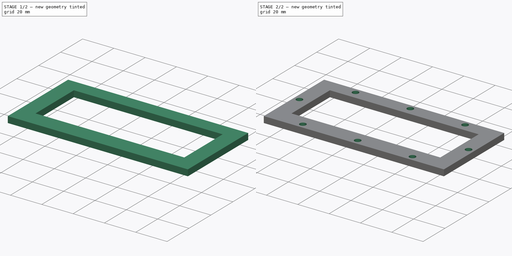
[diagram: build sequence overview — one tinted view per stage of 2, left to right]
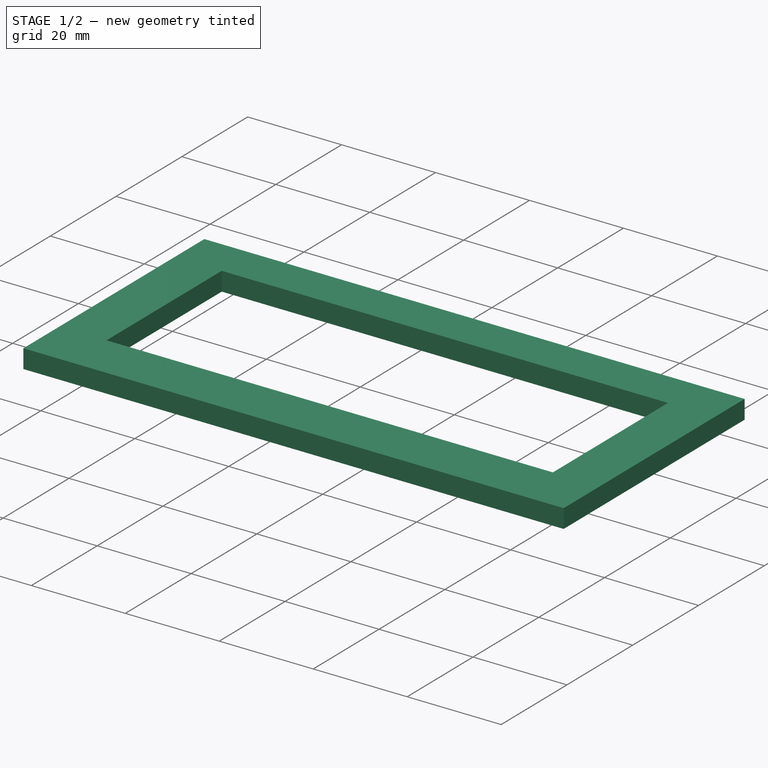
[diagram: stage 1 of 2 — iso view after this stage's code; geometry added in this stage tinted green]
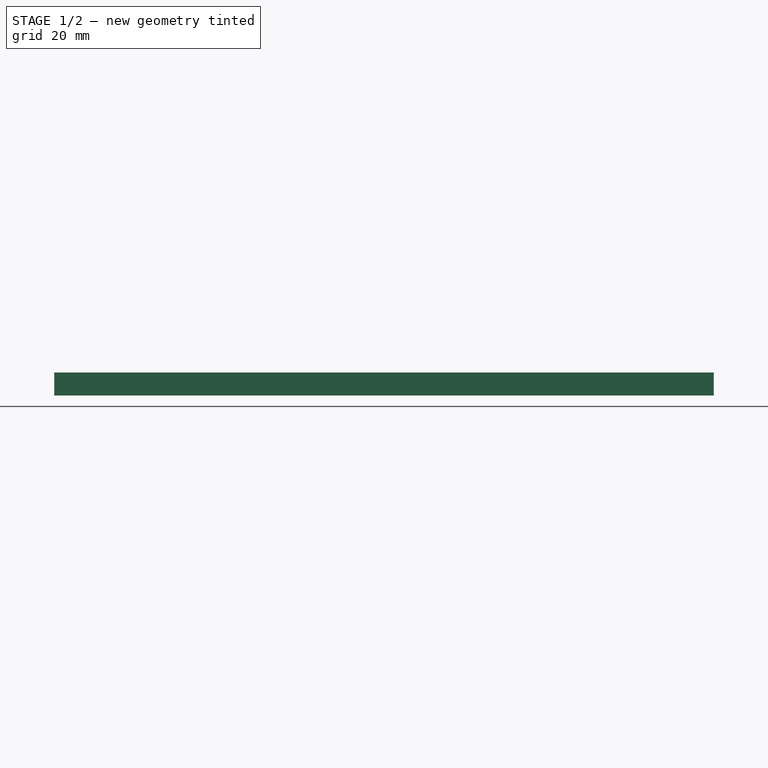
[diagram: stage 1 of 2 — front view after this stage's code; geometry added in this stage tinted green]
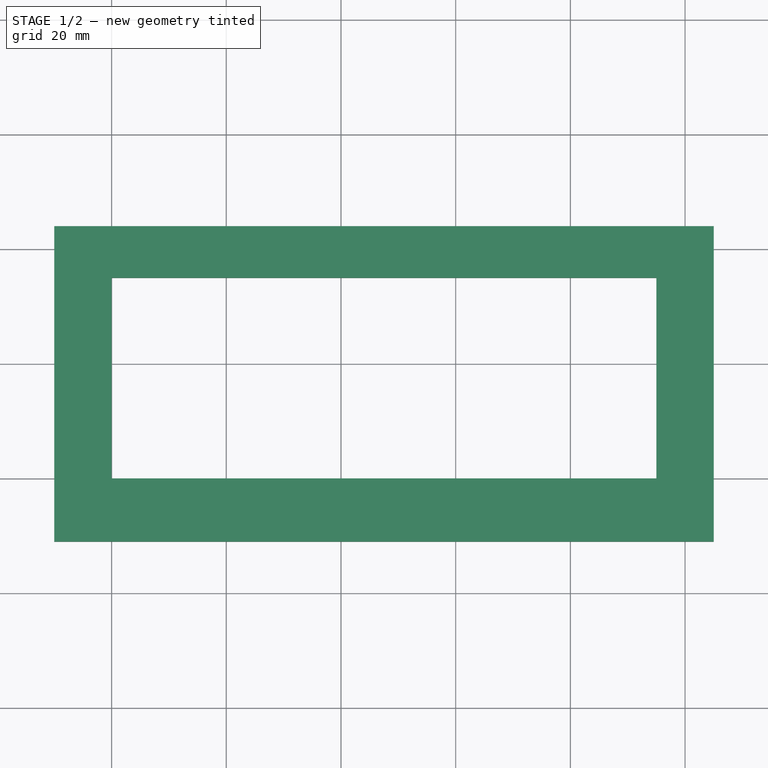
[diagram: stage 1 of 2 — top view after this stage's code; geometry added in this stage tinted green]
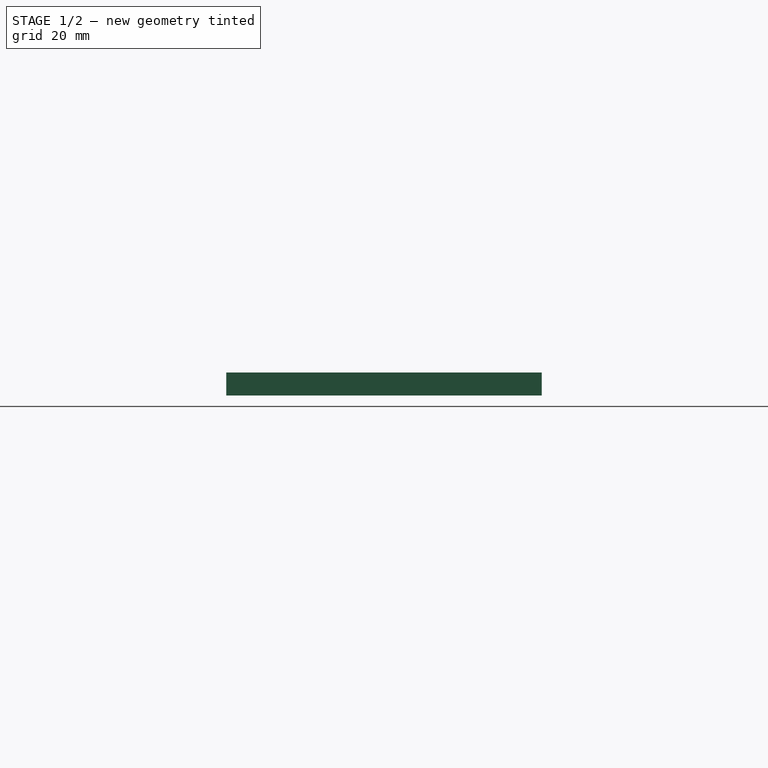
[diagram: stage 1 of 2 — right view after this stage's code; geometry added in this stage tinted green]
FCSTD DOCUMENT  (FreeCAD 0.16R6655 (Git))
Label: taz_Y_Z_Z_external_harness_proto_board_plate
License: CreativeCommons Attribution-ShareAlike
LicenseURL: http://creativecommons.org/licenses/by-sa/4.0/
objects: Sketcher::SketchObject×2, PartDesign::Pad×1, PartDesign::Pocket×1
note: 6 computed .brp shape members not serialized (recipe doc carries the construction recipe); baked Part::Feature solids carry a one-line shape summary decoded from their .brp

FEATURE [Sketcher::SketchObject] Sketch
  sketch-geometry (12):
    g0: LineSegment StartX=0 StartY=0 StartZ=0 EndX=95 EndY=0 EndZ=0
    g1: LineSegment StartX=95 StartY=0 StartZ=0 EndX=95 EndY=35 EndZ=0
    g2: LineSegment StartX=95 StartY=35 StartZ=0 EndX=0 EndY=35 EndZ=0
    g3: LineSegment StartX=0 StartY=35 StartZ=0 EndX=0 EndY=0 EndZ=0
    g4: LineSegment StartX=-10 StartY=-11 StartZ=0 EndX=105 EndY=-11 EndZ=0
    g5: LineSegment StartX=105 StartY=-11 StartZ=0 EndX=105 EndY=44 EndZ=0
    g6: LineSegment StartX=105 StartY=44 StartZ=0 EndX=-10 EndY=44 EndZ=0
    g7: LineSegment StartX=-10 StartY=44 StartZ=0 EndX=-10 EndY=-11 EndZ=0
    g8: LineSegment [constr] StartX=-2.38928 StartY=37.8926 StartZ=0 EndX=98.6107 EndY=37.8926 EndZ=0
    g9: LineSegment [constr] StartX=98.6107 StartY=37.8926 StartZ=0 EndX=98.6107 EndY=-3.10736 EndZ=0
    g10: LineSegment [constr] StartX=98.6107 StartY=-3.10736 StartZ=0 EndX=-2.38928 EndY=-3.10736 EndZ=0
    g11: LineSegment [constr] StartX=-2.38928 StartY=-3.10736 StartZ=0 EndX=-2.38928 EndY=37.8926 EndZ=0
  constraints (33):
    c: Coincident(g0,g1)
    c: Coincident(g1,g2)
    c: Coincident(g2,g3)
    c: Coincident(g3,g0)
    c: Horizontal(g0)
    c: Horizontal(g2)
    c: Vertical(g1)
    c: Vertical(g3)
    c: Coincident(g0,g-1)
    c: DistanceY(g3) = -35
    c: DistanceX(g2) = -95
    c: Coincident(g4,g5)
    c: Coincident(g5,g6)
    c: Coincident(g6,g7)
    c: Coincident(g7,g4)
    c: Horizontal(g4)
    c: Horizontal(g6)
    c: Vertical(g5)
    c: Vertical(g7)
    c: DistanceY(g7) = -55
    c: DistanceX(g4) = 115
    c: DistanceX(g2,g6) = -10
    c: DistanceY(g-1,g4) = -11
    c: Coincident(g8,g9)
    c: Coincident(g9,g10)
    c: Coincident(g10,g11)
    c: Coincident(g11,g8)
    c: Horizontal(g8)
    c: Horizontal(g10)
    c: Vertical(g9)
    c: Vertical(g11)
    c: DistanceY(g11,g11) = 41
    c: DistanceX(g10,g10) = 101
FEATURE [PartDesign::Pad] Pad
  Length = 4
  Length2 = 100
  Sketch = -> Sketch
  Type = 0
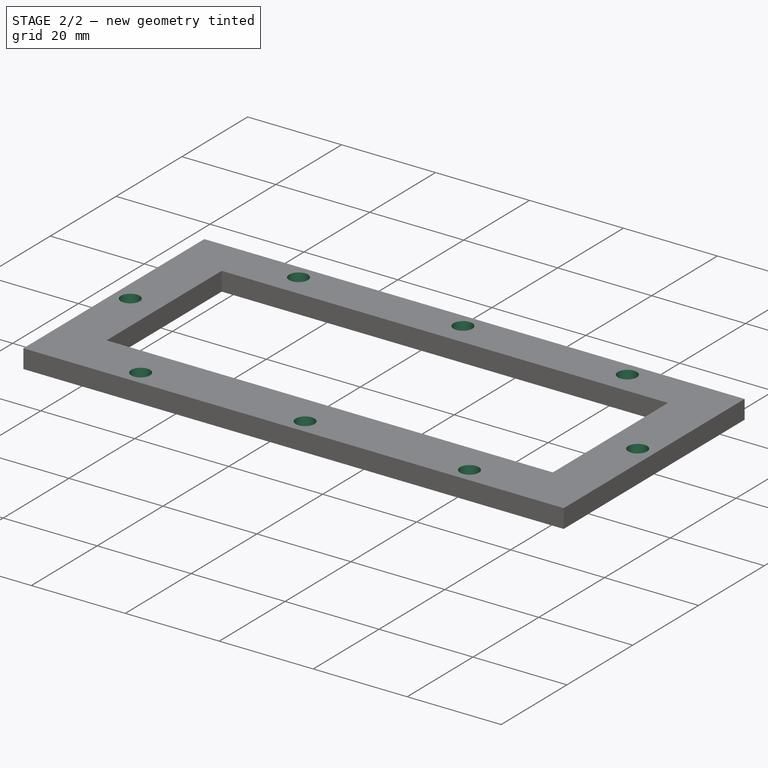
[diagram: stage 2 of 2 — iso view after this stage's code; geometry added in this stage tinted green]
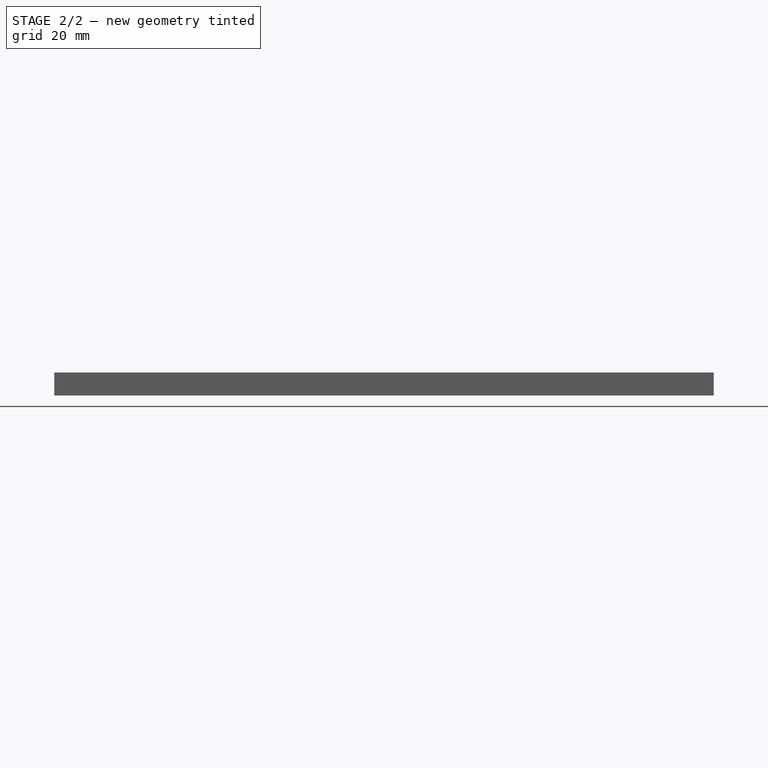
[diagram: stage 2 of 2 — front view after this stage's code; geometry added in this stage tinted green]
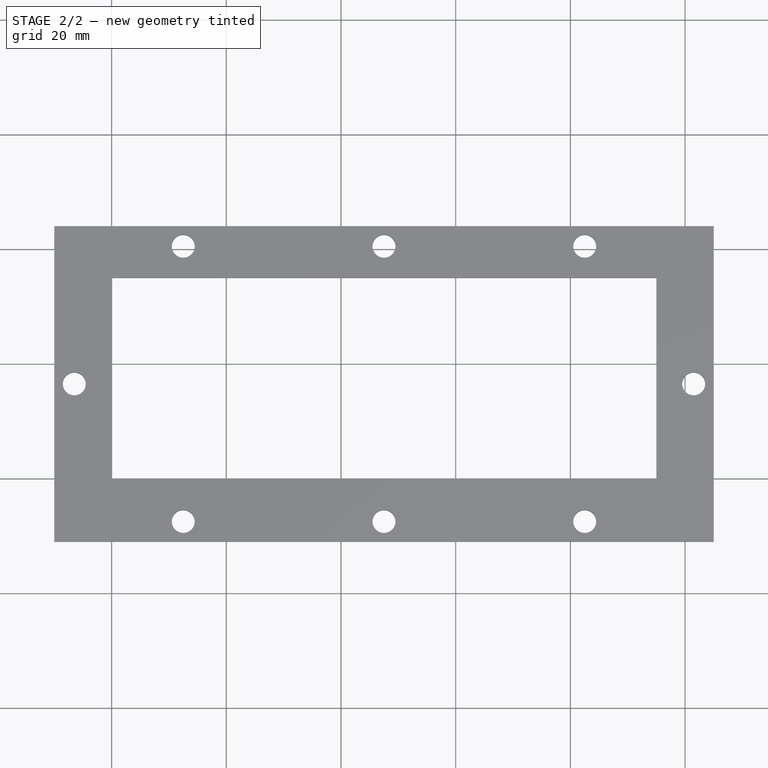
[diagram: stage 2 of 2 — top view after this stage's code; geometry added in this stage tinted green]
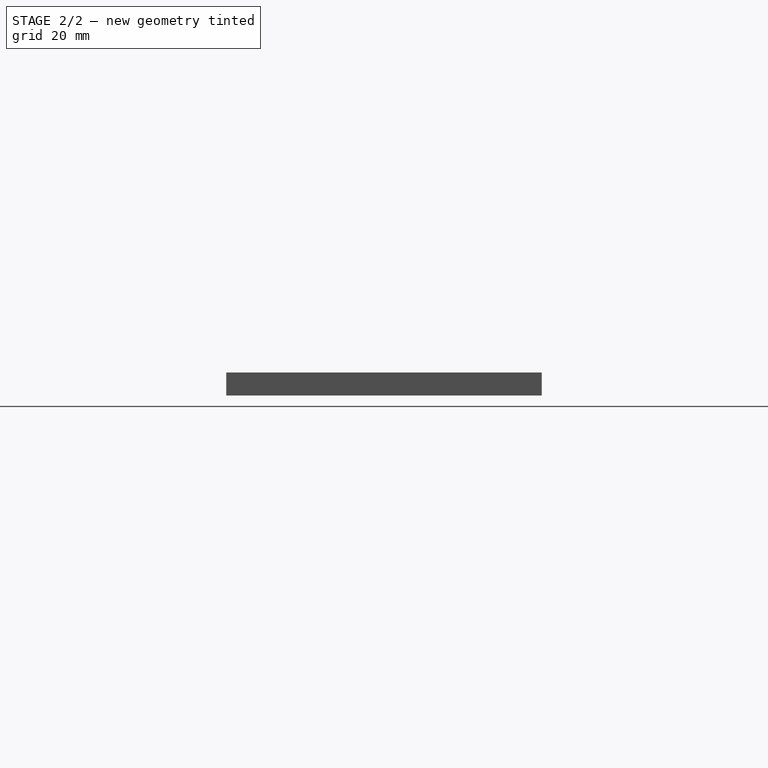
[diagram: stage 2 of 2 — right view after this stage's code; geometry added in this stage tinted green]
FEATURE [Sketcher::SketchObject] Sketch001
  ExternalGeometry = -> [Pad]
  Placement = pos=(0,0,4) rot=(0,0,1;0rad)
  Support = -> Pad [Face10]
  sketch-geometry (12):
    g0: LineSegment [constr] StartX=-6.5 StartY=40.5 StartZ=0 EndX=101.5 EndY=40.5 EndZ=0
    g1: LineSegment [constr] StartX=101.5 StartY=40.5 StartZ=0 EndX=101.5 EndY=-7.5 EndZ=0
    g2: LineSegment [constr] StartX=101.5 StartY=-7.5 StartZ=0 EndX=-6.5 EndY=-7.5 EndZ=0
    g3: LineSegment [constr] StartX=-6.5 StartY=-7.5 StartZ=0 EndX=-6.5 EndY=40.5 EndZ=0
    g4: Circle CenterX=-6.5 CenterY=16.5 CenterZ=0 NormalX=0 NormalY=0 NormalZ=1 Radius=2
    g5: Circle CenterX=12.5 CenterY=40.5 CenterZ=0 NormalX=0 NormalY=0 NormalZ=1 Radius=2
    g6: Circle CenterX=47.5 CenterY=40.5 CenterZ=0 NormalX=0 NormalY=0 NormalZ=1 Radius=2
    g7: Circle CenterX=82.5 CenterY=40.5 CenterZ=0 NormalX=0 NormalY=0 NormalZ=1 Radius=2
    g8: Circle CenterX=101.5 CenterY=16.5 CenterZ=0 NormalX=0 NormalY=0 NormalZ=1 Radius=2
    g9: Circle CenterX=82.5 CenterY=-7.5 CenterZ=0 NormalX=0 NormalY=0 NormalZ=1 Radius=2
    g10: Circle CenterX=47.5 CenterY=-7.5 CenterZ=0 NormalX=0 NormalY=0 NormalZ=1 Radius=2
    g11: Circle CenterX=12.5 CenterY=-7.5 CenterZ=0 NormalX=0 NormalY=0 NormalZ=1 Radius=2
  constraints (36):
    c: Coincident(g0,g1)
    c: Coincident(g1,g2)
    c: Coincident(g2,g3)
    c: Coincident(g3,g0)
    c: Horizontal(g0)
    c: Horizontal(g2)
    c: Vertical(g1)
    c: Vertical(g3)
    c: DistanceX(g2,g-3) = -3.5
    c: DistanceY(g2,g-3) = -3.5
    c: PointOnObject(g5,g0)
    c: PointOnObject(g6,g0)
    c: PointOnObject(g8,g1)
    c: PointOnObject(g10,g2)
    c: PointOnObject(g11,g2)
    c: Radius(g6) = 2
    c: Equal(g6,g5)
    c: Equal(g6,g4)
    c: Equal(g6,g11)
    c: Equal(g6,g10)
    c: Equal(g6,g9)
    c: Equal(g6,g8)
    c: Equal(g6,g7)
    c: DistanceX(g10,g6) = 0
    c: DistanceX(g5,g11) = 0
    c: DistanceX(g7,g9) = 0
    c: DistanceY(g8,g4) = 0
    c: DistanceX(g11,g10) = 35
    c: DistanceX(g10,g9) = 35
    c: PointOnObject(g9,g2)
    c: PointOnObject(g4,g3)
    c: PointOnObject(g7,g0)
    c: DistanceX(g-3,g6) = 57.5
    c: DistanceY(g5,g-3) = 3.5
    c: DistanceX(g8,g-4) = 3.5
    c: DistanceY(g4,g5) = 24
FEATURE [PartDesign::Pocket] Pocket
  Length = 5
  Sketch = -> Sketch001
  Type = 1
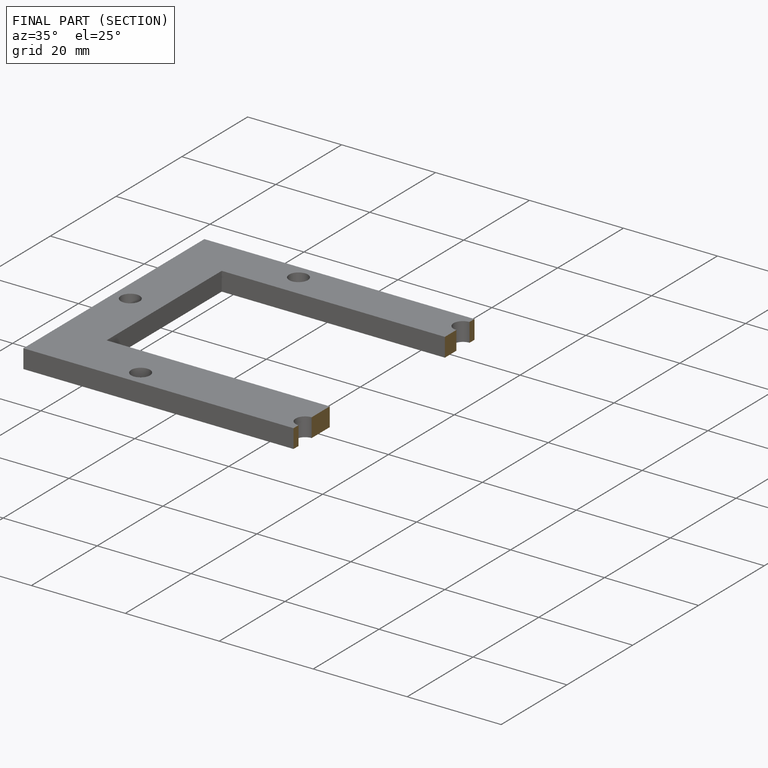
[diagram: finished part — half-section view (interior)]
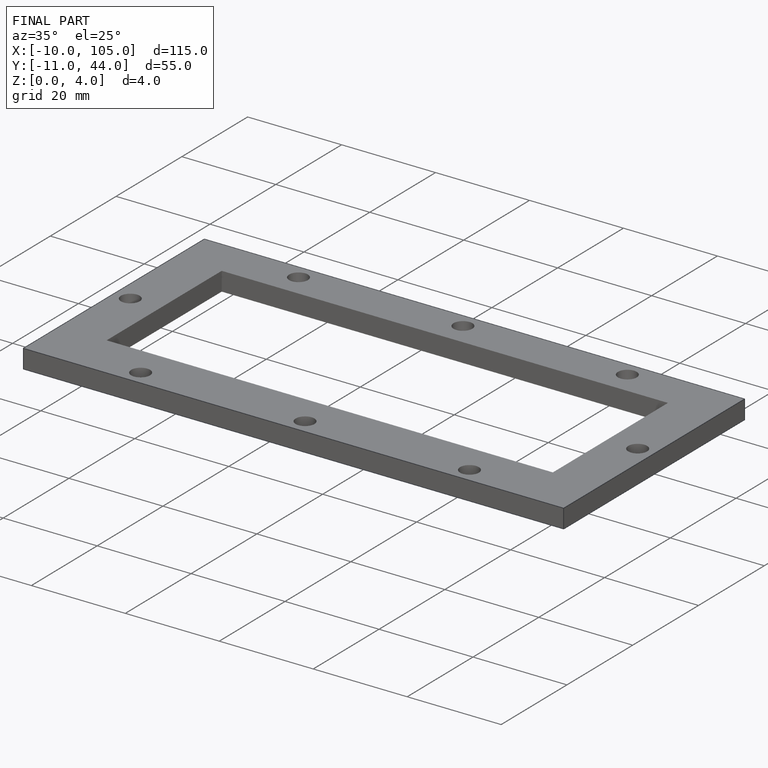
[diagram: finished part — iso view with bounding-box wireframe]
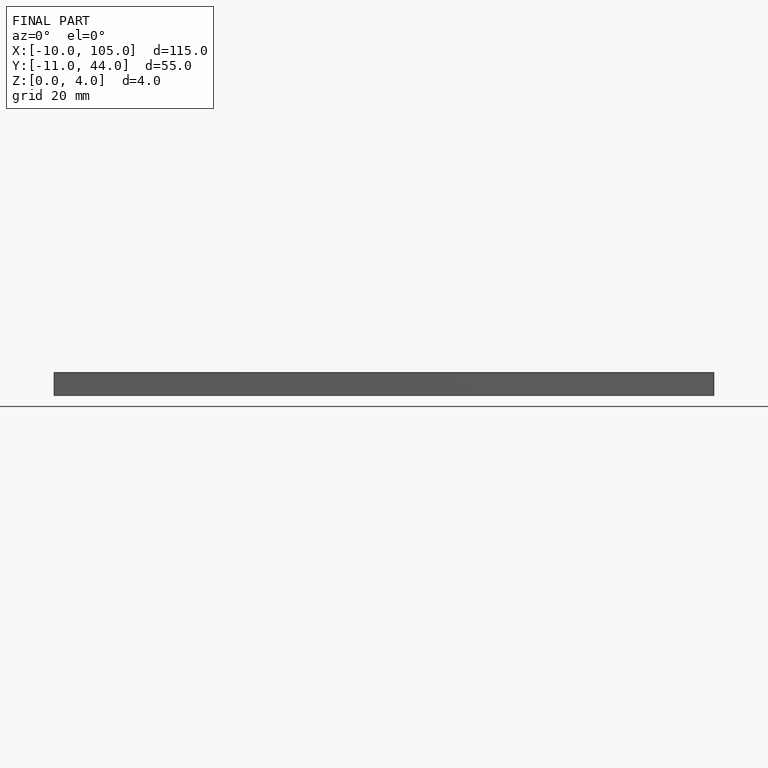
[diagram: finished part — front view with bounding-box wireframe]
